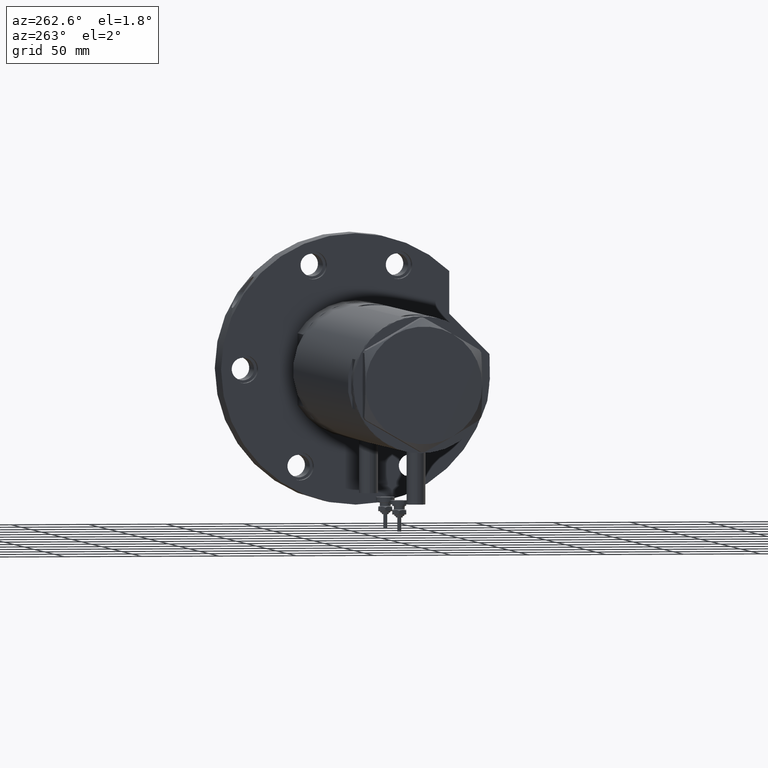
[diagram: clean part render]
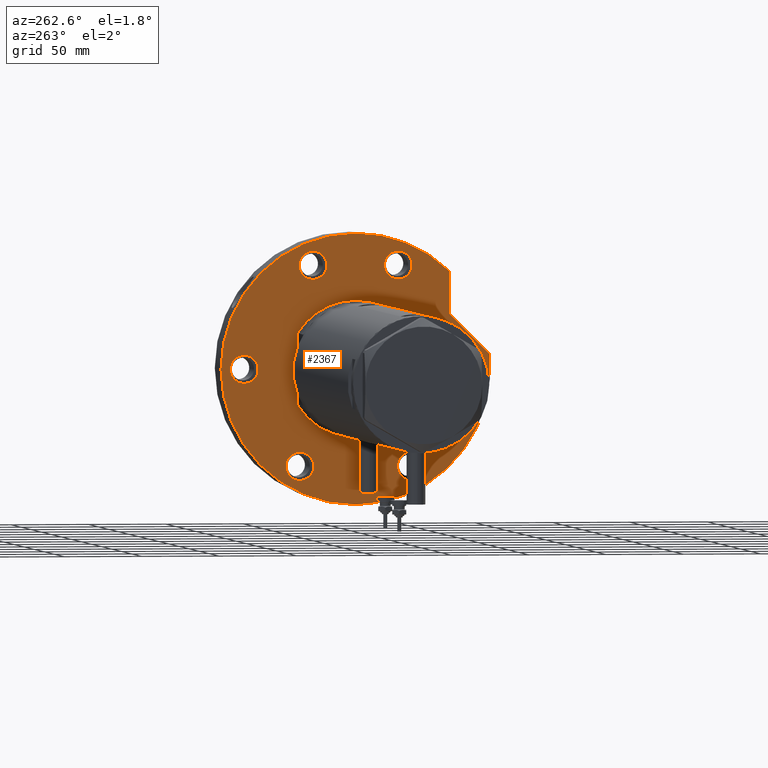
[diagram: same view with one face highlighted and labeled with its STEP entity id]
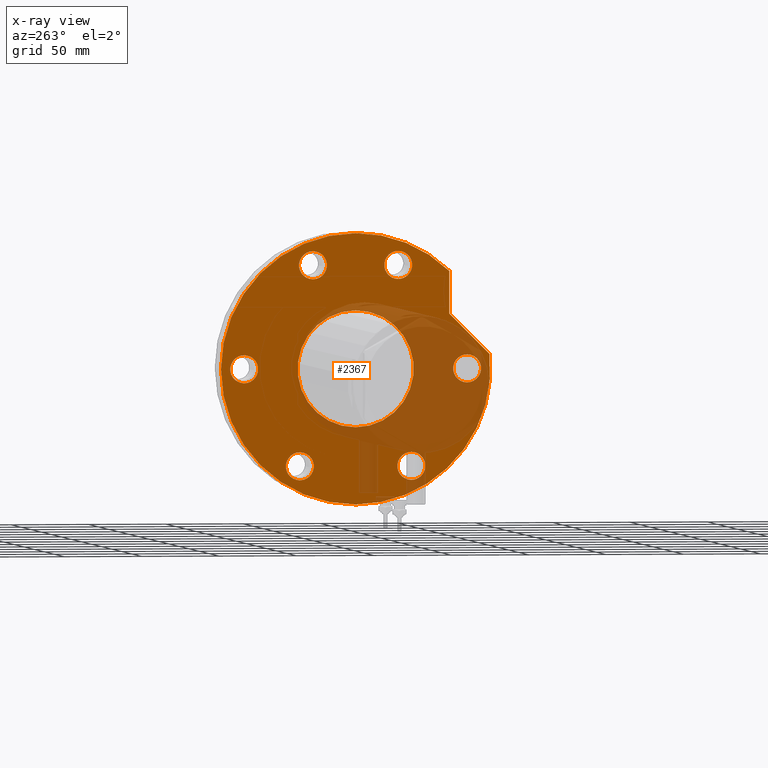
[diagram: x-ray of the same camera — body ghosted, the highlighted face saturated]
A machine part, auxiliary view. The second image highlights one B-rep face of the part: STEP entity #2367.
The next image is the same camera in x-ray: the body ghosted, the highlighted face saturated — about 30% of this face is hidden behind the body in this view.
In plain terms, the highlighted planar face has unit normal (1, 0, -0).
Its self-contained STEP definition (entity closure, byte-faithful):
#65 = CARTESIAN_POINT ( 'NONE',  ( 66.51932634081252615, -27.55320713028675073, 0.000000000000000000 ) ) ;
#67 = VERTEX_POINT ( 'NONE', #5207 ) ;
#68 = AXIS2_PLACEMENT_3D ( 'NONE', #6441, #4087, #1209 ) ;
#133 = DIRECTION ( 'NONE',  ( -1.000000000000000000, 0.000000000000000000, 0.000000000000000000 ) ) ;
#187 = DIRECTION ( 'NONE',  ( -1.000000000000000000, 0.000000000000000000, 0.000000000000000000 ) ) ;
#244 = FACE_BOUND ( 'NONE', #4985, .T. ) ;
#280 = FACE_BOUND ( 'NONE', #4713, .T. ) ;
#300 = EDGE_LOOP ( 'NONE', ( #667, #2806 ) ) ;
#449 = CIRCLE ( 'NONE', #4074, 87.00000000000000000 ) ;
#455 = DIRECTION ( 'NONE',  ( 0.000000000000000000, 0.000000000000000000, -1.000000000000000000 ) ) ;
#507 = ORIENTED_EDGE ( 'NONE', *, *, #893, .F. ) ;
#525 = AXIS2_PLACEMENT_3D ( 'NONE', #2068, #7215, #4991 ) ;
#535 = EDGE_CURVE ( 'NONE', #707, #1599, #1623, .T. ) ;
#569 = CARTESIAN_POINT ( 'NONE',  ( 0.000000000000000000, 72.00000000000000000, 0.000000000000000000 ) ) ;
#623 = CARTESIAN_POINT ( 'NONE',  ( 0.000000000000000000, 72.00000000000000000, 0.000000000000000000 ) ) ;
#625 = EDGE_CURVE ( 'NONE', #1070, #3037, #7360, .T. ) ;
#657 = DIRECTION ( 'NONE',  ( 0.000000000000000000, 0.000000000000000000, -1.000000000000000000 ) ) ;
#667 = ORIENTED_EDGE ( 'NONE', *, *, #625, .T. ) ;
#672 = DIRECTION ( 'NONE',  ( 0.000000000000000000, 0.000000000000000000, 1.000000000000000000 ) ) ;
#677 = AXIS2_PLACEMENT_3D ( 'NONE', #3554, #672, #2981 ) ;
#707 = VERTEX_POINT ( 'NONE', #6746 ) ;
#708 = CARTESIAN_POINT ( 'NONE',  ( 9.196694222441541555, 86.51254715576759224, 0.000000000000000000 ) ) ;
#763 = DIRECTION ( 'NONE',  ( 0.000000000000000000, 0.000000000000000000, -1.000000000000000000 ) ) ;
#779 = DIRECTION ( 'NONE',  ( 0.000000000000000000, 0.000000000000000000, 1.000000000000000000 ) ) ;
#875 = ORIENTED_EDGE ( 'NONE', *, *, #6265, .T. ) ;
#882 = ORIENTED_EDGE ( 'NONE', *, *, #5599, .F. ) ;
#893 = EDGE_CURVE ( 'NONE', #1599, #707, #4661, .T. ) ;
#895 = DIRECTION ( 'NONE',  ( 1.000000000000000000, 0.000000000000000000, 0.000000000000000000 ) ) ;
#907 = DIRECTION ( 'NONE',  ( -1.000000000000000000, 0.000000000000000000, 0.000000000000000000 ) ) ;
#989 = ORIENTED_EDGE ( 'NONE', *, *, #6997, .F. ) ;
#998 = EDGE_CURVE ( 'NONE', #3712, #2120, #1629, .T. ) ;
#1032 = AXIS2_PLACEMENT_3D ( 'NONE', #7159, #4243, #3598 ) ;
#1070 = VERTEX_POINT ( 'NONE', #1996 ) ;
#1104 = ORIENTED_EDGE ( 'NONE', *, *, #4562, .F. ) ;
#1111 = ORIENTED_EDGE ( 'NONE', *, *, #2041, .F. ) ;
#1137 = DIRECTION ( 'NONE',  ( -1.000000000000000000, 0.000000000000000000, 0.000000000000000000 ) ) ;
#1156 = CIRCLE ( 'NONE', #2005, 37.50000000000000711 ) ;
#1181 = DIRECTION ( 'NONE',  ( -1.000000000000000000, 0.000000000000000000, 0.000000000000000000 ) ) ;
#1209 = DIRECTION ( 'NONE',  ( 1.000000000000000000, 0.000000000000000000, 0.000000000000000000 ) ) ;
#1285 = ORIENTED_EDGE ( 'NONE', *, *, #998, .F. ) ;
#1477 = VERTEX_POINT ( 'NONE', #708 ) ;
#1489 = DIRECTION ( 'NONE',  ( 0.000000000000000000, 0.000000000000000000, -1.000000000000000000 ) ) ;
#1599 = VERTEX_POINT ( 'NONE', #3159 ) ;
#1623 = CIRCLE ( 'NONE', #5511, 8.999999999999998224 ) ;
#1624 = CARTESIAN_POINT ( 'NONE',  ( -62.35382907247942086, -36.00000000000027711, 0.000000000000000000 ) ) ;
#1629 = CIRCLE ( 'NONE', #1032, 9.000000000000001776 ) ;
#1639 = CARTESIAN_POINT ( 'NONE',  ( 57.51932634081251905, 27.55320713028675073, 0.000000000000000000 ) ) ;
#1661 = DIRECTION ( 'NONE',  ( 0.000000000000000000, 0.000000000000000000, -1.000000000000000000 ) ) ;
#1712 = DIRECTION ( 'NONE',  ( 0.000000000000000000, 0.000000000000000000, -1.000000000000000000 ) ) ;
#1728 = VERTEX_POINT ( 'NONE', #7420 ) ;
#1756 = DIRECTION ( 'NONE',  ( -1.000000000000000000, 0.000000000000000000, 0.000000000000000000 ) ) ;
#1782 = AXIS2_PLACEMENT_3D ( 'NONE', #5602, #1712, #1181 ) ;
#1886 = CIRCLE ( 'NONE', #677, 87.00000000000000000 ) ;
#1948 = CIRCLE ( 'NONE', #2680, 9.000000000000001776 ) ;
#1996 = CARTESIAN_POINT ( 'NONE',  ( 37.50000000000000711, 0.000000000000000000, 0.000000000000000000 ) ) ;
#2002 = EDGE_CURVE ( 'NONE', #2918, #6796, #6074, .T. ) ;
#2005 = AXIS2_PLACEMENT_3D ( 'NONE', #7491, #7453, #6309 ) ;
#2027 = CARTESIAN_POINT ( 'NONE',  ( 0.000000000000000000, 0.000000000000000000, 0.000000000000000000 ) ) ;
#2037 = CARTESIAN_POINT ( 'NONE',  ( 57.51932634081251905, -27.55320713028675073, 0.000000000000000000 ) ) ;
#2041 = EDGE_CURVE ( 'NONE', #2120, #3712, #7008, .T. ) ;
#2061 = CARTESIAN_POINT ( 'NONE',  ( 35.23236590573035443, 60.47687547247904405, 0.000000000000000000 ) ) ;
#2068 = CARTESIAN_POINT ( 'NONE',  ( -62.35382907247942086, -36.00000000000027711, 0.000000000000000000 ) ) ;
#2074 = EDGE_CURVE ( 'NONE', #3037, #1070, #1156, .T. ) ;
#2120 = VERTEX_POINT ( 'NONE', #1639 ) ;
#2151 = CARTESIAN_POINT ( 'NONE',  ( -71.35382907247965534, 35.99999999999985079, 0.000000000000000000 ) ) ;
#2169 = VECTOR ( 'NONE', #3373, 999.9999999999998863 ) ;
#2367 = ADVANCED_FACE ( 'NONE', ( #244, #6729, #280, #7338, #3806, #7181, #2632, #2552 ), #4413, .F. ) ;
#2369 = VECTOR ( 'NONE', #3152, 1000.000000000000000 ) ;
#2371 = DIRECTION ( 'NONE',  ( 0.000000000000000000, 0.000000000000000000, -1.000000000000000000 ) ) ;
#2389 = DIRECTION ( 'NONE',  ( 0.000000000000000000, 0.000000000000000000, -1.000000000000000000 ) ) ;
#2391 = AXIS2_PLACEMENT_3D ( 'NONE', #1624, #455, #907 ) ;
#2393 = VERTEX_POINT ( 'NONE', #6248 ) ;
#2418 = ORIENTED_EDGE ( 'NONE', *, *, #5542, .F. ) ;
#2506 = CIRCLE ( 'NONE', #1782, 9.000000000000001776 ) ;
#2548 = EDGE_CURVE ( 'NONE', #67, #2839, #6031, .T. ) ;
#2552 = FACE_OUTER_BOUND ( 'NONE', #5788, .T. ) ;
#2632 = FACE_BOUND ( 'NONE', #300, .T. ) ;
#2633 = CIRCLE ( 'NONE', #7160, 9.000000000000001776 ) ;
#2680 = AXIS2_PLACEMENT_3D ( 'NONE', #5447, #2371, #133 ) ;
#2738 = AXIS2_PLACEMENT_3D ( 'NONE', #5045, #1661, #6328 ) ;
#2774 = ORIENTED_EDGE ( 'NONE', *, *, #2002, .T. ) ;
#2806 = ORIENTED_EDGE ( 'NONE', *, *, #2074, .T. ) ;
#2839 = VERTEX_POINT ( 'NONE', #4418 ) ;
#2842 = EDGE_CURVE ( 'NONE', #1477, #1728, #449, .T. ) ;
#2874 = CIRCLE ( 'NONE', #3606, 9.000000000000001776 ) ;
#2918 = VERTEX_POINT ( 'NONE', #4346 ) ;
#2924 = VERTEX_POINT ( 'NONE', #2151 ) ;
#2981 = DIRECTION ( 'NONE',  ( 1.000000000000000000, 0.000000000000000000, 0.000000000000000000 ) ) ;
#3023 = EDGE_LOOP ( 'NONE', ( #4743, #882 ) ) ;
#3037 = VERTEX_POINT ( 'NONE', #6496 ) ;
#3111 = CARTESIAN_POINT ( 'NONE',  ( 75.51932634081252615, -27.55320713028675073, 0.000000000000000000 ) ) ;
#3152 = DIRECTION ( 'NONE',  ( 1.000000000000000000, 0.000000000000000000, 0.000000000000000000 ) ) ;
#3159 = CARTESIAN_POINT ( 'NONE',  ( 8.999999999999998224, 72.00000000000000000, 0.000000000000000000 ) ) ;
#3218 = ORIENTED_EDGE ( 'NONE', *, *, #3911, .F. ) ;
#3291 = EDGE_CURVE ( 'NONE', #5098, #5958, #2506, .T. ) ;
#3336 = CIRCLE ( 'NONE', #68, 87.00000000000000000 ) ;
#3373 = DIRECTION ( 'NONE',  ( 0.7071067811865511255, -0.7071067811865440200, -0.000000000000000000 ) ) ;
#3401 = CARTESIAN_POINT ( 'NONE',  ( 62.54236590573034249, 60.47687547247904405, 0.000000000000000000 ) ) ;
#3446 = DIRECTION ( 'NONE',  ( 0.000000000000000000, 0.000000000000000000, -1.000000000000000000 ) ) ;
#3508 = DIRECTION ( 'NONE',  ( 1.000000000000000000, 0.000000000000000000, 0.000000000000000000 ) ) ;
#3549 = ORIENTED_EDGE ( 'NONE', *, *, #3810, .F. ) ;
#3554 = CARTESIAN_POINT ( 'NONE',  ( 0.000000000000000000, 0.000000000000000000, 0.000000000000000000 ) ) ;
#3598 = DIRECTION ( 'NONE',  ( -1.000000000000000000, 0.000000000000000000, 0.000000000000000000 ) ) ;
#3606 = AXIS2_PLACEMENT_3D ( 'NONE', #3642, #763, #187 ) ;
#3642 = CARTESIAN_POINT ( 'NONE',  ( -62.35382907247965534, 35.99999999999985079, 0.000000000000000000 ) ) ;
#3684 = CARTESIAN_POINT ( 'NONE',  ( 66.51932634081252615, 27.55320713028675073, 0.000000000000000000 ) ) ;
#3693 = CARTESIAN_POINT ( 'NONE',  ( 0.000000000000000000, 0.000000000000000000, 0.000000000000000000 ) ) ;
#3712 = VERTEX_POINT ( 'NONE', #4016 ) ;
#3806 = FACE_BOUND ( 'NONE', #6893, .T. ) ;
#3810 = EDGE_CURVE ( 'NONE', #2393, #6796, #3336, .T. ) ;
#3830 = AXIS2_PLACEMENT_3D ( 'NONE', #2027, #6116, #6762 ) ;
#3911 = EDGE_CURVE ( 'NONE', #1728, #2393, #1886, .T. ) ;
#3951 = ORIENTED_EDGE ( 'NONE', *, *, #7103, .F. ) ;
#4016 = CARTESIAN_POINT ( 'NONE',  ( 75.51932634081252615, 27.55320713028675073, 0.000000000000000000 ) ) ;
#4074 = AXIS2_PLACEMENT_3D ( 'NONE', #3693, #779, #895 ) ;
#4087 = DIRECTION ( 'NONE',  ( 0.000000000000000000, 0.000000000000000000, 1.000000000000000000 ) ) ;
#4108 = EDGE_LOOP ( 'NONE', ( #1111, #1285 ) ) ;
#4185 = DIRECTION ( 'NONE',  ( 0.000000000000000000, 0.000000000000000000, 1.000000000000000000 ) ) ;
#4243 = DIRECTION ( 'NONE',  ( 0.000000000000000000, 0.000000000000000000, -1.000000000000000000 ) ) ;
#4346 = CARTESIAN_POINT ( 'NONE',  ( 35.23236590573035443, 60.47687547247904405, 0.000000000000000000 ) ) ;
#4413 = PLANE ( 'NONE',  #3830 ) ;
#4418 = CARTESIAN_POINT ( 'NONE',  ( 8.999999999999998224, -72.00000000000000000, 0.000000000000000000 ) ) ;
#4562 = EDGE_CURVE ( 'NONE', #4651, #7359, #5679, .T. ) ;
#4626 = DIRECTION ( 'NONE',  ( -1.000000000000000000, 0.000000000000000000, 0.000000000000000000 ) ) ;
#4644 = CARTESIAN_POINT ( 'NONE',  ( 0.000000000000000000, 0.000000000000000000, 0.000000000000000000 ) ) ;
#4651 = VERTEX_POINT ( 'NONE', #6333 ) ;
#4661 = CIRCLE ( 'NONE', #6632, 8.999999999999998224 ) ;
#4713 = EDGE_LOOP ( 'NONE', ( #4812, #6944 ) ) ;
#4743 = ORIENTED_EDGE ( 'NONE', *, *, #2548, .F. ) ;
#4749 = CIRCLE ( 'NONE', #525, 9.000000000000001776 ) ;
#4812 = ORIENTED_EDGE ( 'NONE', *, *, #5904, .F. ) ;
#4818 = AXIS2_PLACEMENT_3D ( 'NONE', #6334, #7356, #6787 ) ;
#4985 = EDGE_LOOP ( 'NONE', ( #7221, #507 ) ) ;
#4991 = DIRECTION ( 'NONE',  ( -1.000000000000000000, 0.000000000000000000, 0.000000000000000000 ) ) ;
#5045 = CARTESIAN_POINT ( 'NONE',  ( 0.000000000000000000, -72.00000000000000000, 0.000000000000000000 ) ) ;
#5098 = VERTEX_POINT ( 'NONE', #3111 ) ;
#5123 = LINE ( 'NONE', #5237, #2169 ) ;
#5207 = CARTESIAN_POINT ( 'NONE',  ( -8.999999999999998224, -72.00000000000000000, 0.000000000000000000 ) ) ;
#5237 = CARTESIAN_POINT ( 'NONE',  ( 35.23236590573035443, 60.47687547247904405, 0.000000000000000000 ) ) ;
#5289 = AXIS2_PLACEMENT_3D ( 'NONE', #3684, #1489, #6028 ) ;
#5447 = CARTESIAN_POINT ( 'NONE',  ( -62.35382907247965534, 35.99999999999985079, 0.000000000000000000 ) ) ;
#5511 = AXIS2_PLACEMENT_3D ( 'NONE', #623, #657, #1756 ) ;
#5542 = EDGE_CURVE ( 'NONE', #6086, #2924, #2874, .T. ) ;
#5599 = EDGE_CURVE ( 'NONE', #2839, #67, #6431, .T. ) ;
#5602 = CARTESIAN_POINT ( 'NONE',  ( 66.51932634081252615, -27.55320713028675073, 0.000000000000000000 ) ) ;
#5679 = CIRCLE ( 'NONE', #2391, 9.000000000000001776 ) ;
#5788 = EDGE_LOOP ( 'NONE', ( #875, #2774, #3549, #3218, #7168 ) ) ;
#5904 = EDGE_CURVE ( 'NONE', #5958, #5098, #2633, .T. ) ;
#5958 = VERTEX_POINT ( 'NONE', #2037 ) ;
#6009 = AXIS2_PLACEMENT_3D ( 'NONE', #4644, #4185, #3508 ) ;
#6028 = DIRECTION ( 'NONE',  ( -1.000000000000000000, 0.000000000000000000, 0.000000000000000000 ) ) ;
#6031 = CIRCLE ( 'NONE', #2738, 8.999999999999998224 ) ;
#6074 = LINE ( 'NONE', #2061, #2369 ) ;
#6086 = VERTEX_POINT ( 'NONE', #6127 ) ;
#6116 = DIRECTION ( 'NONE',  ( 0.000000000000000000, 0.000000000000000000, 1.000000000000000000 ) ) ;
#6127 = CARTESIAN_POINT ( 'NONE',  ( -53.35382907247965534, 35.99999999999985079, 0.000000000000000000 ) ) ;
#6248 = CARTESIAN_POINT ( 'NONE',  ( 87.00000000000000000, 1.065442715258197209E-14, 0.000000000000000000 ) ) ;
#6265 = EDGE_CURVE ( 'NONE', #1477, #2918, #5123, .T. ) ;
#6309 = DIRECTION ( 'NONE',  ( 1.000000000000000000, 0.000000000000000000, 0.000000000000000000 ) ) ;
#6328 = DIRECTION ( 'NONE',  ( -1.000000000000000000, 0.000000000000000000, 0.000000000000000000 ) ) ;
#6333 = CARTESIAN_POINT ( 'NONE',  ( -53.35382907247941375, -36.00000000000027711, 0.000000000000000000 ) ) ;
#6334 = CARTESIAN_POINT ( 'NONE',  ( 0.000000000000000000, -72.00000000000000000, 0.000000000000000000 ) ) ;
#6431 = CIRCLE ( 'NONE', #4818, 8.999999999999998224 ) ;
#6441 = CARTESIAN_POINT ( 'NONE',  ( 0.000000000000000000, 0.000000000000000000, 0.000000000000000000 ) ) ;
#6496 = CARTESIAN_POINT ( 'NONE',  ( -37.50000000000000711, 4.592425496802575156E-15, 0.000000000000000000 ) ) ;
#6632 = AXIS2_PLACEMENT_3D ( 'NONE', #569, #2389, #1137 ) ;
#6729 = FACE_BOUND ( 'NONE', #4108, .T. ) ;
#6746 = CARTESIAN_POINT ( 'NONE',  ( -8.999999999999998224, 72.00000000000000000, 0.000000000000000000 ) ) ;
#6762 = DIRECTION ( 'NONE',  ( 1.000000000000000000, 0.000000000000000000, -0.000000000000000000 ) ) ;
#6787 = DIRECTION ( 'NONE',  ( -1.000000000000000000, 0.000000000000000000, 0.000000000000000000 ) ) ;
#6796 = VERTEX_POINT ( 'NONE', #3401 ) ;
#6893 = EDGE_LOOP ( 'NONE', ( #3951, #1104 ) ) ;
#6944 = ORIENTED_EDGE ( 'NONE', *, *, #3291, .F. ) ;
#6949 = CARTESIAN_POINT ( 'NONE',  ( -71.35382907247941375, -36.00000000000027711, 0.000000000000000000 ) ) ;
#6997 = EDGE_CURVE ( 'NONE', #2924, #6086, #1948, .T. ) ;
#7008 = CIRCLE ( 'NONE', #5289, 9.000000000000001776 ) ;
#7103 = EDGE_CURVE ( 'NONE', #7359, #4651, #4749, .T. ) ;
#7158 = EDGE_LOOP ( 'NONE', ( #989, #2418 ) ) ;
#7159 = CARTESIAN_POINT ( 'NONE',  ( 66.51932634081252615, 27.55320713028675073, 0.000000000000000000 ) ) ;
#7160 = AXIS2_PLACEMENT_3D ( 'NONE', #65, #3446, #4626 ) ;
#7168 = ORIENTED_EDGE ( 'NONE', *, *, #2842, .F. ) ;
#7181 = FACE_BOUND ( 'NONE', #7158, .T. ) ;
#7215 = DIRECTION ( 'NONE',  ( 0.000000000000000000, 0.000000000000000000, -1.000000000000000000 ) ) ;
#7221 = ORIENTED_EDGE ( 'NONE', *, *, #535, .F. ) ;
#7338 = FACE_BOUND ( 'NONE', #3023, .T. ) ;
#7356 = DIRECTION ( 'NONE',  ( 0.000000000000000000, 0.000000000000000000, -1.000000000000000000 ) ) ;
#7359 = VERTEX_POINT ( 'NONE', #6949 ) ;
#7360 = CIRCLE ( 'NONE', #6009, 37.50000000000000711 ) ;
#7420 = CARTESIAN_POINT ( 'NONE',  ( -87.00000000000000000, 0.000000000000000000, 0.000000000000000000 ) ) ;
#7453 = DIRECTION ( 'NONE',  ( 0.000000000000000000, 0.000000000000000000, 1.000000000000000000 ) ) ;
#7491 = CARTESIAN_POINT ( 'NONE',  ( 0.000000000000000000, 0.000000000000000000, 0.000000000000000000 ) ) ;